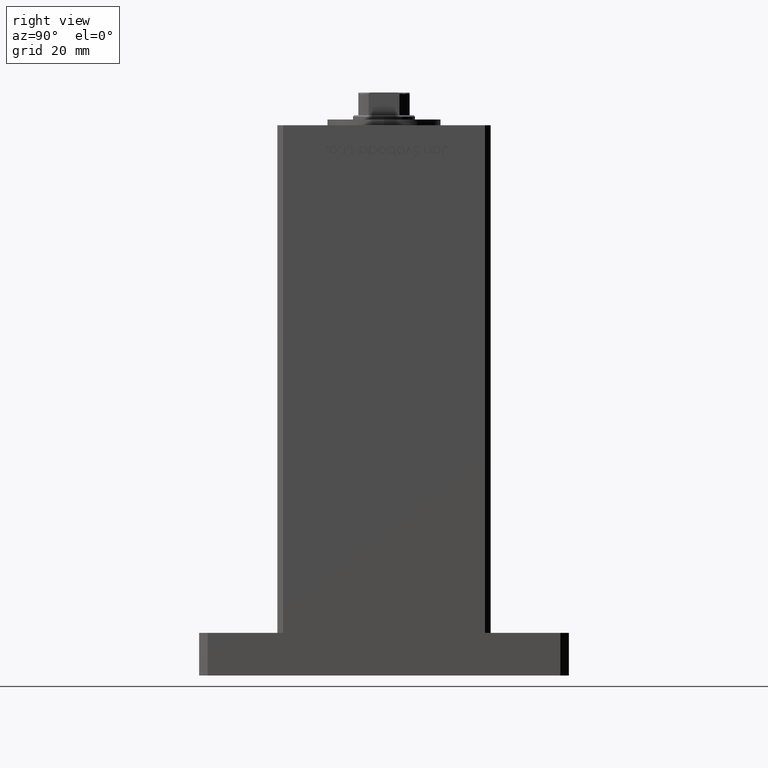
[diagram: clean part render]
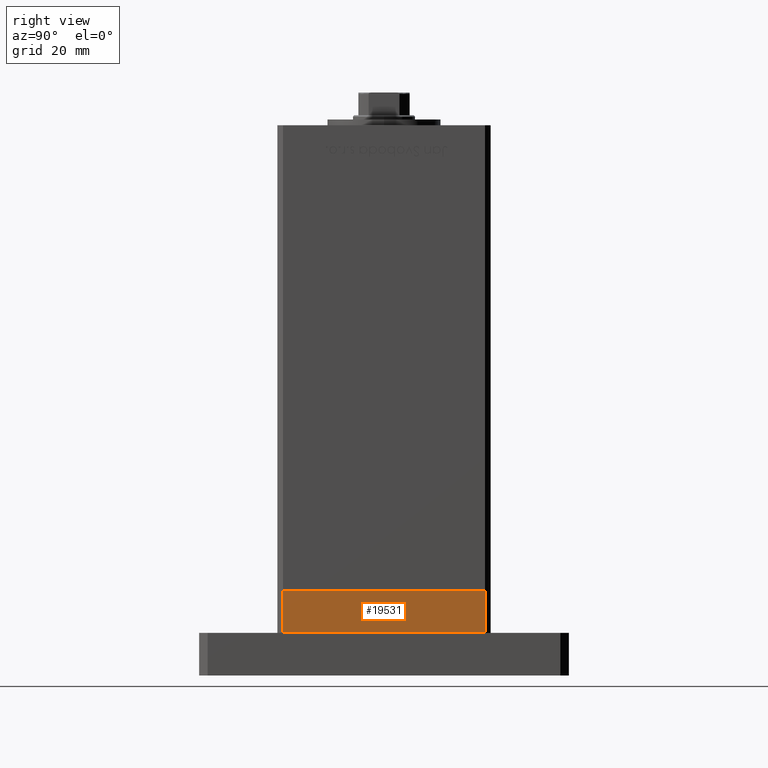
[diagram: same view with one face highlighted and labeled with its STEP entity id]
A machine part, right view. The second image highlights one B-rep face of the part: STEP entity #19531.
In plain terms, the highlighted planar face has unit normal (1, 0, 0).
Its self-contained STEP definition (entity closure, byte-faithful):
#1093 = VECTOR ( 'NONE', #47788, 1000.000000000000000 ) ;
#1345 = LINE ( 'NONE', #29542, #18298 ) ;
#2804 = ORIENTED_EDGE ( 'NONE', *, *, #42215, .T. ) ;
#6229 = LINE ( 'NONE', #48328, #1093 ) ;
#8160 = VERTEX_POINT ( 'NONE', #18546 ) ;
#9855 = ORIENTED_EDGE ( 'NONE', *, *, #52797, .F. ) ;
#11848 = LINE ( 'NONE', #32489, #16851 ) ;
#15000 = CARTESIAN_POINT ( 'NONE',  ( -42.50000000000000711, 35.49999999999997158, 0.000000000000000000 ) ) ;
#15489 = AXIS2_PLACEMENT_3D ( 'NONE', #32781, #48584, #27896 ) ;
#16235 = PLANE ( 'NONE',  #15489 ) ;
#16851 = VECTOR ( 'NONE', #23238, 1000.000000000000000 ) ;
#18298 = VECTOR ( 'NONE', #46155, 1000.000000000000000 ) ;
#18546 = CARTESIAN_POINT ( 'NONE',  ( -42.50000000000000000, -35.50000000000000711, -15.00000000000000000 ) ) ;
#19301 = VERTEX_POINT ( 'NONE', #50232 ) ;
#19531 = ADVANCED_FACE ( 'NONE', ( #19747 ), #16235, .T. ) ;
#19747 = FACE_OUTER_BOUND ( 'NONE', #48056, .T. ) ;
#21016 = LINE ( 'NONE', #37863, #23744 ) ;
#23238 = DIRECTION ( 'NONE',  ( 0.000000000000000000, 0.000000000000000000, 1.000000000000000000 ) ) ;
#23744 = VECTOR ( 'NONE', #38138, 1000.000000000000000 ) ;
#27896 = DIRECTION ( 'NONE',  ( 9.773090005503140331E-17, -1.000000000000000000, 0.000000000000000000 ) ) ;
#29542 = CARTESIAN_POINT ( 'NONE',  ( -42.50000000000000000, -35.50000000000000711, -15.00000000000000000 ) ) ;
#30487 = ORIENTED_EDGE ( 'NONE', *, *, #38919, .T. ) ;
#30956 = VERTEX_POINT ( 'NONE', #32957 ) ;
#32489 = CARTESIAN_POINT ( 'NONE',  ( -42.50000000000000711, 35.49999999999997158, -15.00000000000000000 ) ) ;
#32781 = CARTESIAN_POINT ( 'NONE',  ( -42.50000000000000711, 35.49999999999997158, -15.00000000000000000 ) ) ;
#32957 = CARTESIAN_POINT ( 'NONE',  ( -42.50000000000000000, -35.50000000000000711, 0.000000000000000000 ) ) ;
#37863 = CARTESIAN_POINT ( 'NONE',  ( -42.50000000000000711, 35.49999999999997158, 0.000000000000000000 ) ) ;
#38138 = DIRECTION ( 'NONE',  ( 9.773090005503140331E-17, -1.000000000000000000, 0.000000000000000000 ) ) ;
#38919 = EDGE_CURVE ( 'NONE', #8160, #30956, #1345, .T. ) ;
#42215 = EDGE_CURVE ( 'NONE', #19301, #8160, #6229, .T. ) ;
#42696 = VERTEX_POINT ( 'NONE', #15000 ) ;
#45892 = ORIENTED_EDGE ( 'NONE', *, *, #51023, .F. ) ;
#46155 = DIRECTION ( 'NONE',  ( 0.000000000000000000, 0.000000000000000000, 1.000000000000000000 ) ) ;
#47788 = DIRECTION ( 'NONE',  ( 9.773090005503140331E-17, -1.000000000000000000, 0.000000000000000000 ) ) ;
#48056 = EDGE_LOOP ( 'NONE', ( #45892, #9855, #2804, #30487 ) ) ;
#48328 = CARTESIAN_POINT ( 'NONE',  ( -42.50000000000000711, 35.49999999999997158, -15.00000000000000000 ) ) ;
#48584 = DIRECTION ( 'NONE',  ( -1.000000000000000000, -9.773090005503140331E-17, 0.000000000000000000 ) ) ;
#50232 = CARTESIAN_POINT ( 'NONE',  ( -42.50000000000000711, 35.49999999999997158, -15.00000000000000000 ) ) ;
#51023 = EDGE_CURVE ( 'NONE', #42696, #30956, #21016, .T. ) ;
#52797 = EDGE_CURVE ( 'NONE', #19301, #42696, #11848, .T. ) ;